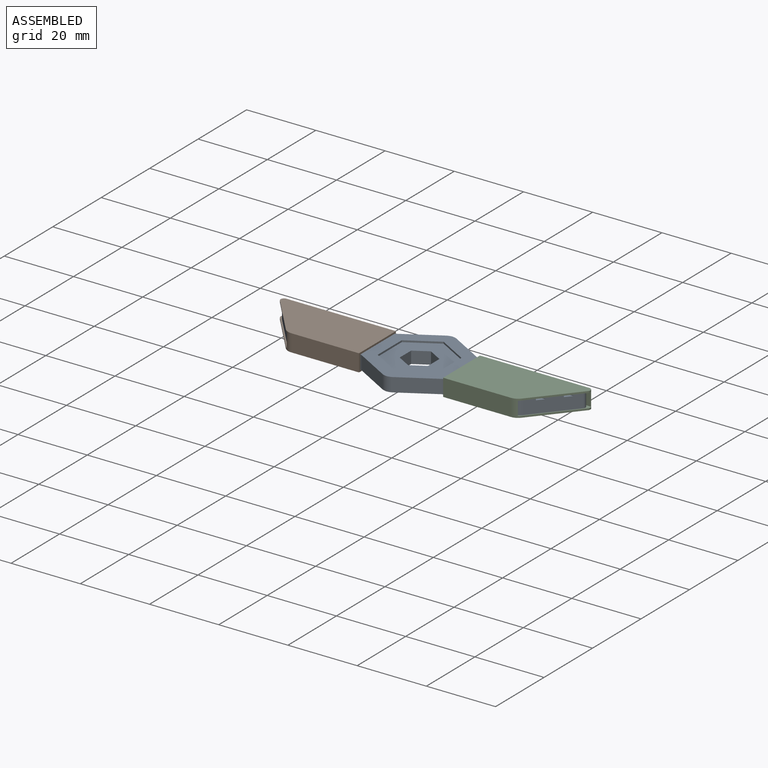
[diagram: assembled view]
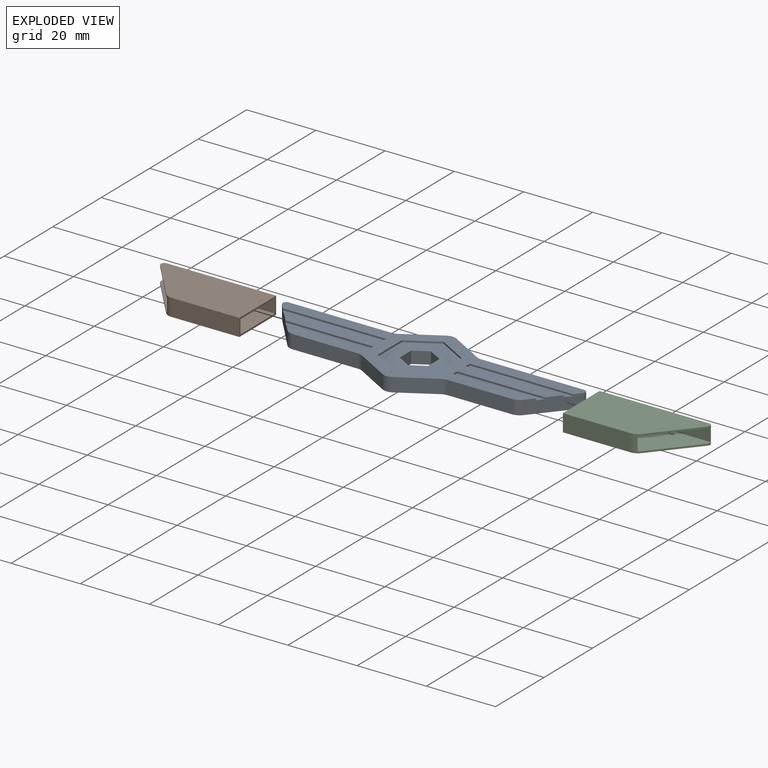
[diagram: exploded view]
GUIDED TOUR — MATED ASSEMBLY (Onshape document 57a345c0e4b0eec132510748, AutoMate assembly 57a345c0e4b0eec132510748_a3fb6fd7bc34ab5af173d9aa_e9c5cc17b2ee37ea8d773729_default)

This assembly has 3 components, labeled P0..P2 below (a component is one placed occurrence of a part; the same part can appear more than once), held together by 2 mates. A mate is a constraint between two components; its type names the relative motion it leaves free:
  SLIDER — leaves translation along the listed axis free.
Axis/direction vectors are unit vectors and 'through' points are millimeter coordinates, both in the assembly's world frame.

MATES
  1. SLIDER "Slider 1": P0 <-> P1, axis (1.000, 0.000, 0.000) through (-42.73, 7.00, 4.00) mm
  2. SLIDER "Slider 2": P2 <-> P0, axis (-1.000, 0.000, 0.000) through (22.69, -7.00, 0.00) mm

ASSEMBLY ORDER
  1. P2 — the base component [order verified]
  2. P0 [order verified]
  3. P1 [order verified]
(P0 verified with a relaxed clearance tolerance: the source model stores slight part interference there.)
Order-tag legend:
  [order verified] — this step's position reverses a verified removal order: the component was checked to insert without passing through the ones already placed.

Of the 3 components, 3 carry the full construction recipe — the FeatureScript program that regenerates the part's solid from scratch; the rest are supplied as boundary geometry only.
Each toured component is shown spotlighted twice — in the assembled view, then in the exploded view, where a leader line traces a displaced component back to its assembled socket (saturated green if recipe-attached, orange if geometry-only; every other component desaturated gray) — followed by its recipe or geometry summary and the mates that hold it.
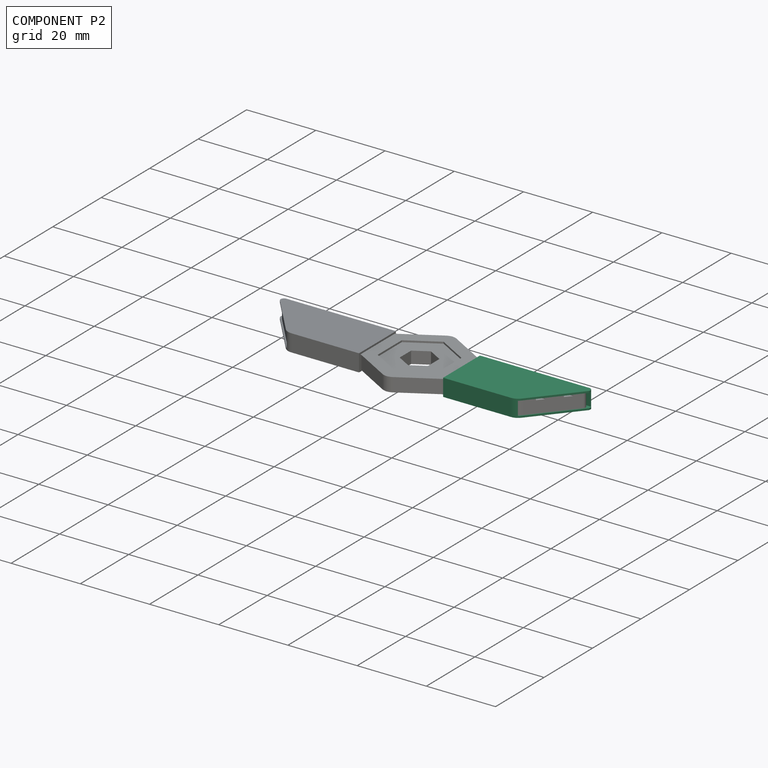
[diagram: component P2 — assembled]
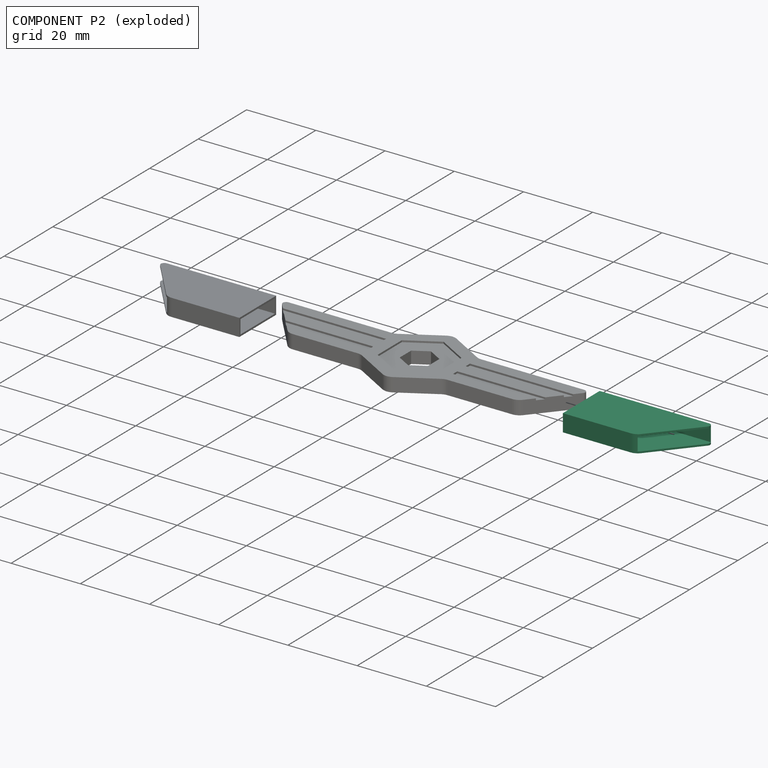
[diagram: component P2 — exploded]
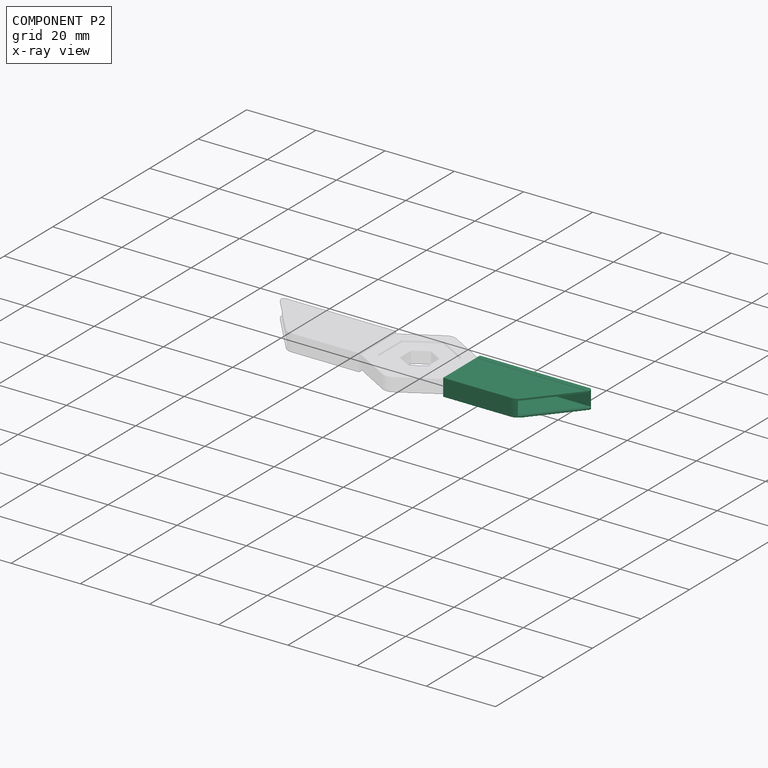
[diagram: component P2 — x-ray view]
COMPONENT P2 — same part as P1 (CADFS 00210956); its construction recipe is shown at P1.
Held by: SLIDER mate "Slider 2" to P0.
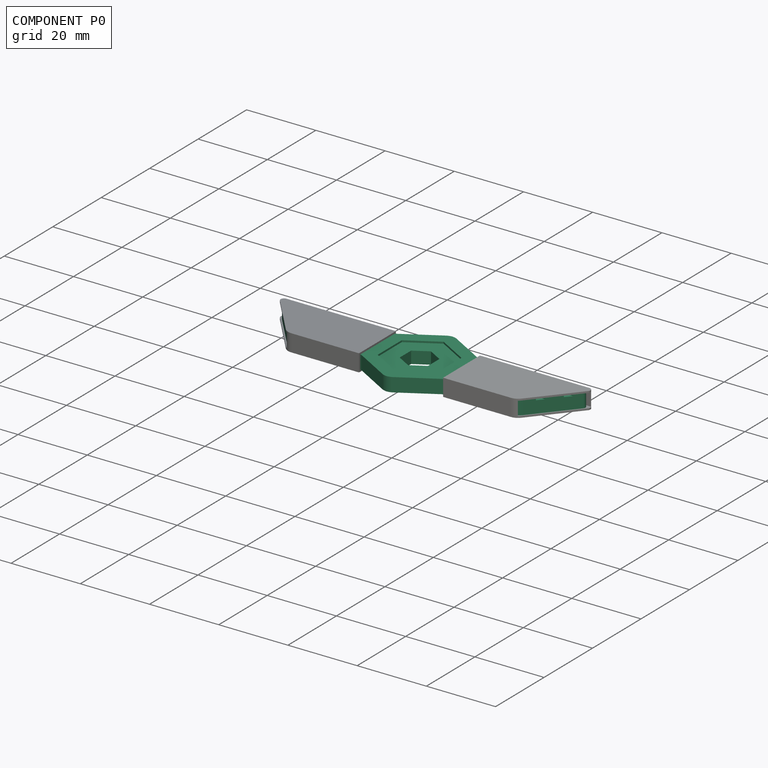
[diagram: component P0 — assembled]
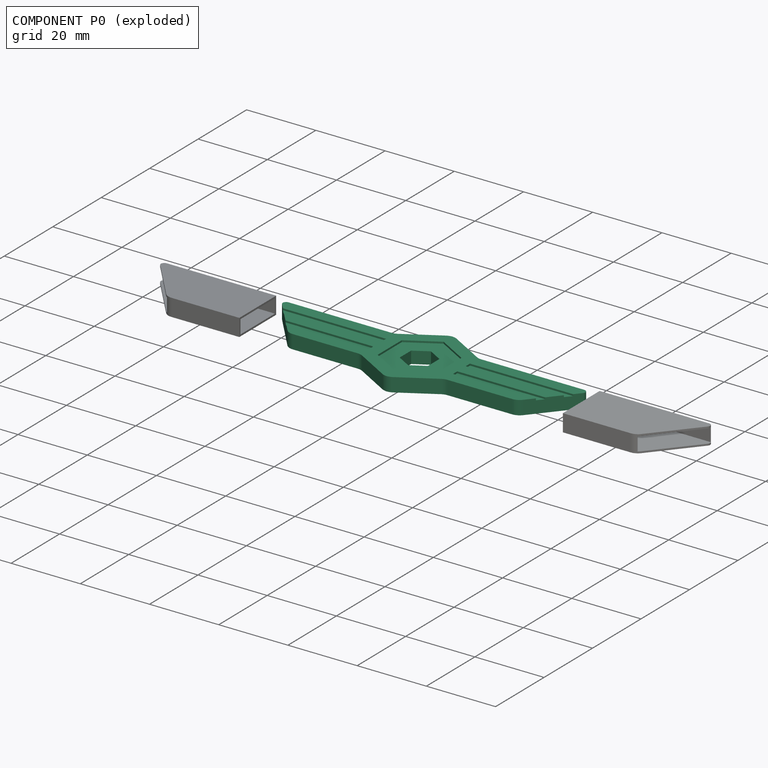
[diagram: component P0 — exploded]
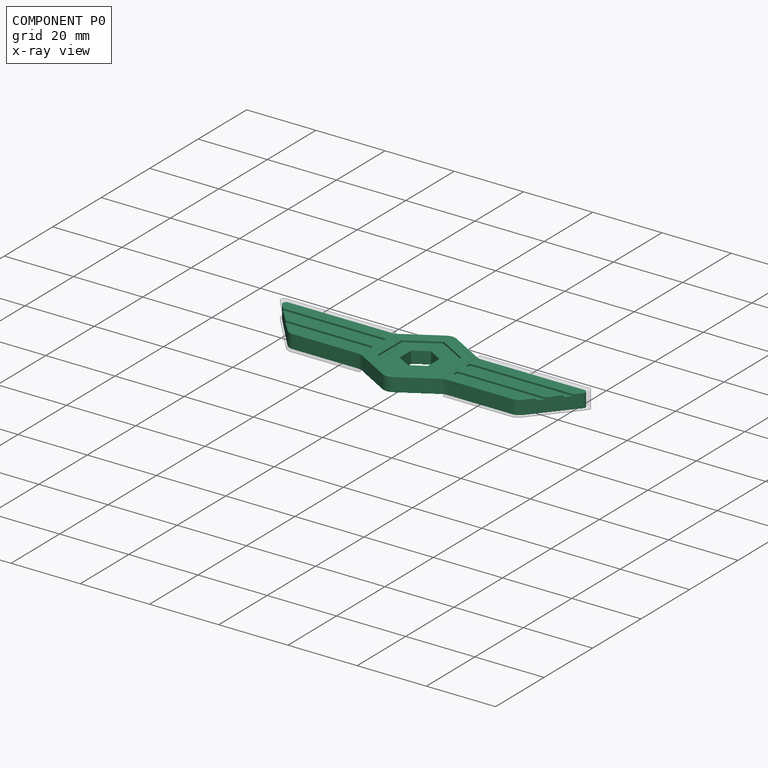
[diagram: component P0 — x-ray view]
COMPONENT P0 — recipe-attached (CADFS 00210955, mesh-verified: the recipe's output STEP matches this component's geometry to below the mesh-comparison resolution (tessellation chordal tolerance ~0.137 mm)).
Held by: SLIDER mate "Slider 1" to P1; SLIDER mate "Slider 2" to P2.
Construction recipe (FeatureScript — the CAD program that rebuilds this solid; sketch coordinates are in the units given by the * unit suffixes, e.g. mm):

FeatureScript 1511;
import(path : "onshape/std/geometry.fs", version : "1511.0");
import(path : "onshape/std/common.fs", version : "1511.0");
const mm = millimeter;
const VERTEX = EntityType.VERTEX;
const EDGE = EntityType.EDGE;
const FACE = EntityType.FACE;
const BODY = EntityType.BODY;
function v(x, y){return vector(x, y);}
function OD(order){return orderDisambiguation(order);}
function OSD(set){return originalSetDisambiguation(set);}
function TD(topology){return topologyDisambiguation(topology);}
function TDD(query){return trueDependencyDisambiguation(query);}
function sQuery(a, b, c) {return sketchEntityQuery(a, b, c);}

annotation { "Feature Type Name" : "Feature", "Feature Type Description" : "" }
export const myFeature = defineFeature(function(context is Context, id is Id, definition is map)
    precondition{}
    {
        {
            var Q0;
            Q0=qCreatedBy(makeId("Top.planeOp"),FACE);
            var sketch = newSketch(context, id + "F0", { "sketchPlane" : qUnion([Q0])});
            skCircle(sketch, "E0.cCircle", {"center": v(0, 0) * mm, "radius": 4.1 * mm, "construction": true});
            skLineSegment(sketch, "E0.0", {"start": v(4.1, -2.36) * mm, "end": v(0, -4.72) * mm});
            skLineSegment(sketch, "E0.1", {"start": v(0, -4.72) * mm, "end": v(-4.1, -2.36) * mm});
            skLineSegment(sketch, "E0.2", {"start": v(-4.1, -2.36) * mm, "end": v(-4.1, 2.36) * mm});
            skLineSegment(sketch, "E0.3", {"start": v(-4.1, 2.36) * mm, "end": v(0, 4.72) * mm});
            skLineSegment(sketch, "E0.4", {"start": v(0, 4.72) * mm, "end": v(4.1, 2.36) * mm});
            skLineSegment(sketch, "E0.5", {"start": v(4.1, 2.36) * mm, "end": v(4.09, -2.36) * mm});
            skPoint(sketch, "E0.0.midPoint", {"position": v(2.04, -3.54) * mm});
            skLineSegment(sketch, "E1.bottom", {"start": v(-30.14, 7) * mm, "end": v(-12.12, 7) * mm});
            skLineSegment(sketch, "E1.top", {"start": v(-33.12, -7) * mm, "end": v(-12.12, -7) * mm});
            skLineSegment(sketch, "E2.MirrorCS", {"start": v(30.14, 7) * mm, "end": v(12.12, 7) * mm});
            skPoint(sketch, "E3.MirrorCS.end.orphan", {"position": v(7.14, -7) * mm});
            skPoint(sketch, "E3.MirrorCS.start.orphan", {"position": v(7.14, 7) * mm});
            skPoint(sketch, "E4.visualSharp", {"position": v(-7.14, -7) * mm});
            skPoint(sketch, "E5.visualSharp", {"position": v(-7.14, 7) * mm});
            skLineSegment(sketch, "E6", {"start": v(-33.12, -7) * mm, "end": v(-44.87, 7) * mm});
            skLineSegment(sketch, "E7", {"start": v(-44.87, 7) * mm, "end": v(-30.14, 7) * mm});
            skLineSegment(sketch, "E8.MirrorCS", {"start": v(33.12, -7) * mm, "end": v(44.87, 7) * mm});
            skLineSegment(sketch, "E9.MirrorCS", {"start": v(44.87, 7) * mm, "end": v(30.14, 7) * mm});
            skCircle(sketch, "E10.cCircle", {"center": v(0, 0) * mm, "radius": 12.12 * mm, "construction": true});
            skLineSegment(sketch, "E10.0", {"start": v(12.12, -7) * mm, "end": v(0, -14) * mm});
            skLineSegment(sketch, "E10.1", {"start": v(0, -14) * mm, "end": v(-12.12, -7) * mm});
            skLineSegment(sketch, "E10.3", {"start": v(-12.12, 7) * mm, "end": v(0, 14) * mm});
            skLineSegment(sketch, "E10.4", {"start": v(0, 14) * mm, "end": v(12.12, 7) * mm});
            skPoint(sketch, "E10.0.midPoint", {"position": v(6.06, -10.5) * mm});
            skLineSegment(sketch, "E11.trimOffspring", {"start": v(12.12, -7) * mm, "end": v(33.12, -7) * mm});
            skSolve(sketch);
        }
        {
            var Q0;
            Q0=makeQuery(id+"F0.imprint","IMPRINT",FACE,{"disambiguationData":[TD([[makeQuery(id+"F0.imprint","IMPRINT",EDGE,{"derivedFrom":sQuery(id+"F0.wireOp",EDGE,"E0.0")}),1.0]])]});
            extrude(context, id + "F1", {"entities" : qUnion([Q0]), "depth" : 4 * mm});
        }
        {
            var Q0;
            Q0=makeQuery(id+"F1.opExtrude","SWEPT_EDGE",EDGE,{"disambiguationData":[OSD([sQuery(id+"F0.wireOp",EDGE,"E6"),sQuery(id+"F0.wireOp",EDGE,"E7")])]});
            var Q1;
            Q1=makeQuery(id+"F1.opExtrude","SWEPT_EDGE",EDGE,{"disambiguationData":[OSD([sQuery(id+"F0.wireOp",EDGE,"E8.MirrorCS"),sQuery(id+"F0.wireOp",EDGE,"E9.MirrorCS")])]});
            fillet(context, id + "F2", {"entities" : qUnion([Q0, Q1]), "radius" : 1 * mm, "tangentPropagation" : true, "allowEdgeOverflow" : false});
        }
        {
            var Q0;
            Q0=makeQuery(id+"F1.opExtrude","SWEPT_EDGE",EDGE,{"disambiguationData":[OSD([sQuery(id+"F0.wireOp",EDGE,"E8.MirrorCS"),sQuery(id+"F0.wireOp",EDGE,"0MMS0jSz-Kxbr-ZvAx-s6WA-RVu7Zw2v6SDE")])]});
            var Q1;
            Q1=makeQuery(id+"F1.opExtrude","SWEPT_EDGE",EDGE,{"disambiguationData":[OSD([sQuery(id+"F0.wireOp",EDGE,"E1.top"),sQuery(id+"F0.wireOp",EDGE,"E6")])]});
            var Q2;
            Q2=makeQuery(id+"F1.opExtrude","SWEPT_EDGE",EDGE,{"disambiguationData":[OSD([sQuery(id+"F0.wireOp",EDGE,"E1.top"),sQuery(id+"F0.wireOp",EDGE,"E10.1")])]});
            var Q3;
            Q3=makeQuery(id+"F1.opExtrude","SWEPT_EDGE",EDGE,{"disambiguationData":[OSD([sQuery(id+"F0.wireOp",EDGE,"E10.0"),sQuery(id+"F0.wireOp",EDGE,"E11.trimOffspring")])]});
            var Q4;
            Q4=makeQuery(id+"F1.opExtrude","SWEPT_EDGE",EDGE,{"disambiguationData":[OSD([sQuery(id+"F0.wireOp",EDGE,"E2.MirrorCS"),sQuery(id+"F0.wireOp",EDGE,"E10.4")])]});
            var Q5;
            Q5=makeQuery(id+"F1.opExtrude","SWEPT_EDGE",EDGE,{"disambiguationData":[OSD([sQuery(id+"F0.wireOp",EDGE,"E1.bottom"),sQuery(id+"F0.wireOp",EDGE,"E10.3")])]});
            var Q6;
            Q6=makeQuery(id+"F1.opExtrude","SWEPT_EDGE",EDGE,{"disambiguationData":[OSD([sQuery(id+"F0.wireOp",EDGE,"E10.0"),sQuery(id+"F0.wireOp",EDGE,"E10.1")])]});
            var Q7;
            Q7=makeQuery(id+"F1.opExtrude","SWEPT_EDGE",EDGE,{"disambiguationData":[OSD([sQuery(id+"F0.wireOp",EDGE,"E10.3"),sQuery(id+"F0.wireOp",EDGE,"E10.4")])]});
            fillet(context, id + "F3", {"entities" : qUnion([Q0, Q1, Q2, Q3, Q4, Q5, Q6, Q7]), "radius" : 3 * mm, "tangentPropagation" : true, "allowEdgeOverflow" : false});
        }
        {
            var Q0;
            Q0=makeQuery(id+"F1.opExtrude","CAP_FACE",FACE,{"disambiguationData":[OSD([sQuery(id+"F0.wireOp",EDGE,"E0.0"),sQuery(id+"F0.wireOp",EDGE,"E0.1"),sQuery(id+"F0.wireOp",EDGE,"E0.2"),sQuery(id+"F0.wireOp",EDGE,"E0.3"),sQuery(id+"F0.wireOp",EDGE,"E0.4"),sQuery(id+"F0.wireOp",EDGE,"E0.5"),sQuery(id+"F0.wireOp",EDGE,"E1.bottom"),sQuery(id+"F0.wireOp",EDGE,"E1.top"),sQuery(id+"F0.wireOp",EDGE,"E2.MirrorCS"),sQuery(id+"F0.wireOp",EDGE,"E6"),sQuery(id+"F0.wireOp",EDGE,"E7"),sQuery(id+"F0.wireOp",EDGE,"E8.MirrorCS"),sQuery(id+"F0.wireOp",EDGE,"E9.MirrorCS"),sQuery(id+"F0.wireOp",EDGE,"E10.0"),sQuery(id+"F0.wireOp",EDGE,"E10.1"),sQuery(id+"F0.wireOp",EDGE,"E10.3"),sQuery(id+"F0.wireOp",EDGE,"E10.4"),sQuery(id+"F0.wireOp",EDGE,"E11.trimOffspring")])],"isStart":false});
            var sketch = newSketch(context, id + "F4", { "sketchPlane" : qUnion([Q0])});
            skCircle(sketch, "E12.cCircle", {"center": v(0, 0) * mm, "radius": 4.09 * mm, "construction": true});
            skLineSegment(sketch, "E12.0", {"start": v(4.1, -2.36) * mm, "end": v(0, -4.72) * mm});
            skLineSegment(sketch, "E12.1", {"start": v(0, -4.72) * mm, "end": v(-4.1, -2.36) * mm});
            skLineSegment(sketch, "E12.2", {"start": v(-4.09, -2.36) * mm, "end": v(-4.09, 2.36) * mm});
            skLineSegment(sketch, "E12.3", {"start": v(-4.1, 2.36) * mm, "end": v(0, 4.72) * mm});
            skLineSegment(sketch, "E12.4", {"start": v(0, 4.72) * mm, "end": v(4.1, 2.36) * mm});
            skLineSegment(sketch, "E12.5", {"start": v(4.1, 2.36) * mm, "end": v(4.1, -2.36) * mm});
            skPoint(sketch, "E12.0.midPoint", {"position": v(2.05, -3.54) * mm});
            skCircle(sketch, "E13.cCircle", {"center": v(0, 0) * mm, "radius": 8.62 * mm, "construction": true});
            skLineSegment(sketch, "E13.0", {"start": v(8.62, -4.98) * mm, "end": v(0, -9.96) * mm});
            skLineSegment(sketch, "E13.1", {"start": v(0, -9.96) * mm, "end": v(-8.62, -4.98) * mm});
            skLineSegment(sketch, "E13.2", {"start": v(-8.62, -4.98) * mm, "end": v(-8.62, 4.98) * mm});
            skLineSegment(sketch, "E13.3", {"start": v(-8.62, 4.98) * mm, "end": v(0, 9.96) * mm});
            skLineSegment(sketch, "E13.4", {"start": v(0, 9.96) * mm, "end": v(8.62, 4.98) * mm});
            skLineSegment(sketch, "E13.5", {"start": v(8.62, 4.98) * mm, "end": v(8.62, -4.98) * mm});
            skPoint(sketch, "E13.0.midPoint", {"position": v(4.31, -7.47) * mm});
            skLineSegment(sketch, "E14", {"start": v(-41.93, 3.5) * mm, "end": v(-12.12, 3.5) * mm});
            skLineSegment(sketch, "E15", {"start": v(-12.12, 3.5) * mm, "end": v(-12.12, 1.75) * mm});
            skLineSegment(sketch, "E16", {"start": v(-12.12, 1.75) * mm, "end": v(-40.47, 1.75) * mm});
            skLineSegment(sketch, "E17", {"start": v(-41.93, 3.5) * mm, "end": v(-40.47, 1.75) * mm});
            skLineSegment(sketch, "E18", {"start": v(-37.53, -1.75) * mm, "end": v(-12.12, -1.75) * mm});
            skLineSegment(sketch, "E19", {"start": v(-12.12, -1.75) * mm, "end": v(-12.12, -3.5) * mm});
            skLineSegment(sketch, "E20", {"start": v(-12.12, -3.5) * mm, "end": v(-36.06, -3.5) * mm});
            skLineSegment(sketch, "E21", {"start": v(-36.06, -3.5) * mm, "end": v(-37.53, -1.75) * mm});
            skLineSegment(sketch, "E22.MirrorCS", {"start": v(12.12, 1.75) * mm, "end": v(40.47, 1.75) * mm});
            skLineSegment(sketch, "E23.MirrorCS", {"start": v(12.12, 3.5) * mm, "end": v(12.12, 1.75) * mm});
            skLineSegment(sketch, "E24.MirrorCS", {"start": v(41.93, 3.5) * mm, "end": v(12.12, 3.5) * mm});
            skLineSegment(sketch, "E25.MirrorCS", {"start": v(41.93, 3.5) * mm, "end": v(40.47, 1.75) * mm});
            skLineSegment(sketch, "E26.MirrorCS", {"start": v(37.53, -1.75) * mm, "end": v(12.12, -1.75) * mm});
            skLineSegment(sketch, "E27.MirrorCS", {"start": v(12.12, -1.75) * mm, "end": v(12.12, -3.5) * mm});
            skLineSegment(sketch, "E28.MirrorCS", {"start": v(12.12, -3.5) * mm, "end": v(36.06, -3.5) * mm});
            skLineSegment(sketch, "E29.MirrorCS", {"start": v(36.06, -3.5) * mm, "end": v(37.53, -1.75) * mm});
            skSolve(sketch);
        }
        {
            var Q0;
            Q0 = qSketchRegion(id + "F4", true);
            extrude(context, id + "F5", {"entities" : qUnion([Q0]), "operationType" : NewBodyOperationType.REMOVE, "oppositeDirection" : true, "depth" : .5 * mm});
        }
        {
            var Q0;
            Q0=qCreatedBy(makeId("Top.planeOp"),FACE);
            cPlane(context, id + "F6", {"entities" : qUnion([Q0]), "cplaneType" : CPlaneType.OFFSET, "offset" : 50 * mm, "width" : 150 * mm, "height" : 150 * mm});
        }
    });
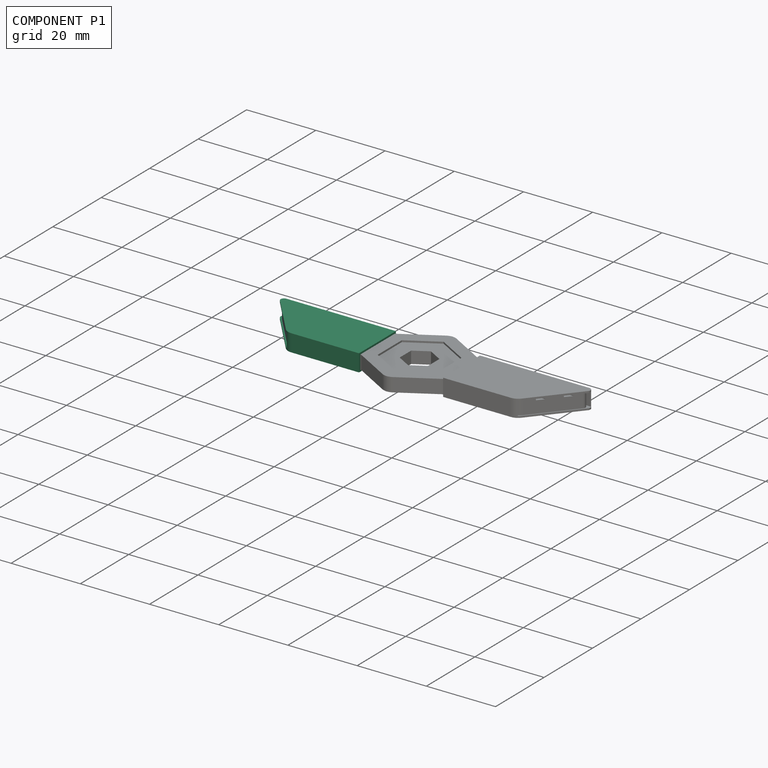
[diagram: component P1 — assembled]
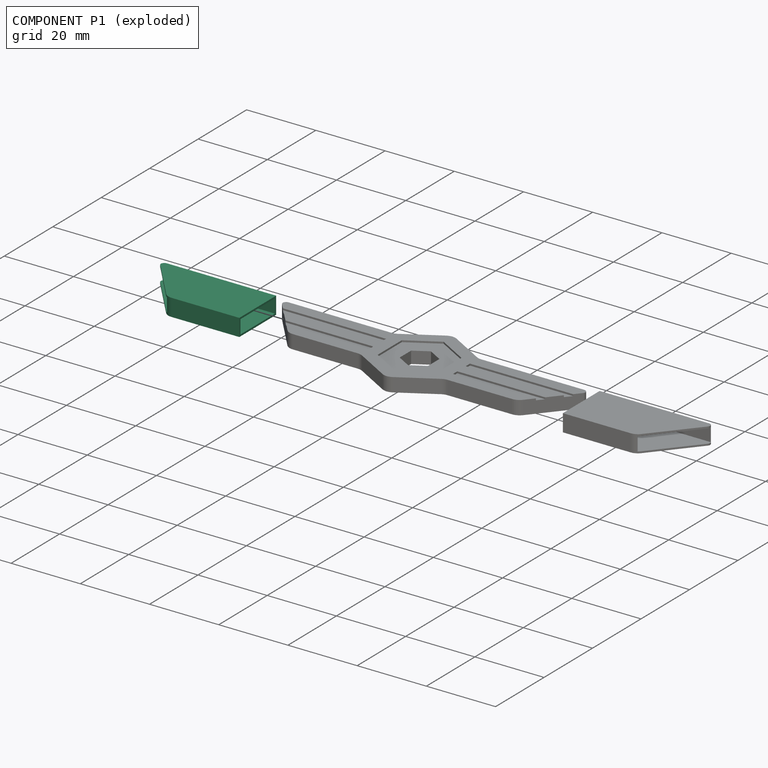
[diagram: component P1 — exploded]
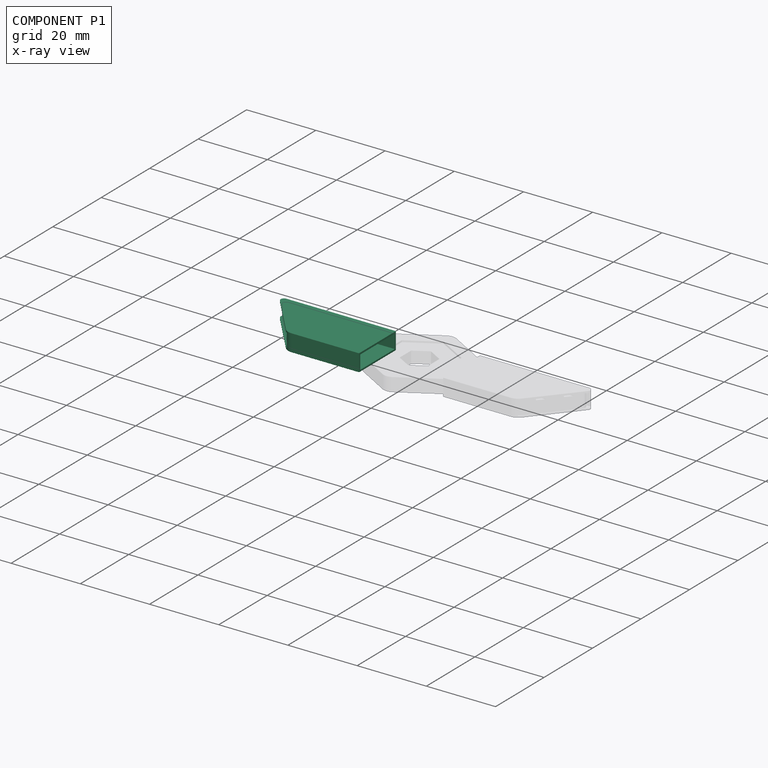
[diagram: component P1 — x-ray view]
COMPONENT P1 — recipe-attached (CADFS 00210956, mesh-verified: the recipe's output STEP matches this component's geometry to below the mesh-comparison resolution (tessellation chordal tolerance ~0.0545 mm)).
Held by: SLIDER mate "Slider 1" to P0.
Construction recipe (FeatureScript — the CAD program that rebuilds this solid; sketch coordinates are in the units given by the * unit suffixes, e.g. mm):

FeatureScript 1511;
import(path : "onshape/std/geometry.fs", version : "1511.0");
import(path : "onshape/std/common.fs", version : "1511.0");
const mm = millimeter;
const VERTEX = EntityType.VERTEX;
const EDGE = EntityType.EDGE;
const FACE = EntityType.FACE;
const BODY = EntityType.BODY;
function v(x, y){return vector(x, y);}
function OD(order){return orderDisambiguation(order);}
function OSD(set){return originalSetDisambiguation(set);}
function TD(topology){return topologyDisambiguation(topology);}
function TDD(query){return trueDependencyDisambiguation(query);}
function sQuery(a, b, c) {return sketchEntityQuery(a, b, c);}

annotation { "Feature Type Name" : "Feature", "Feature Type Description" : "" }
export const myFeature = defineFeature(function(context is Context, id is Id, definition is map)
    precondition{}
    {
        {
            var Q0;
            Q0=qCreatedBy(makeId("Top.planeOp"),FACE);
            var sketch = newSketch(context, id + "F0", { "sketchPlane" : qUnion([Q0])});
            skLineSegment(sketch, "E0.bottom", {"start": v(7.1, -2) * mm, "end": v(-7.1, -2) * mm});
            skLineSegment(sketch, "E0.top", {"start": v(7.1, 2) * mm, "end": v(-7.1, 2) * mm});
            skLineSegment(sketch, "E0.left", {"start": v(7.1, -2) * mm, "end": v(7.1, 2) * mm});
            skLineSegment(sketch, "E0.right", {"start": v(-7.1, -2) * mm, "end": v(-7.1, 2) * mm});
            skPoint(sketch, "E0.middle", {"position": v(0, 0) * mm});
            skLineSegment(sketch, "E1.bottom", {"start": v(7.6, -2.5) * mm, "end": v(-7.6, -2.5) * mm});
            skLineSegment(sketch, "E1.top", {"start": v(7.6, 2.5) * mm, "end": v(-7.6, 2.5) * mm});
            skLineSegment(sketch, "E1.left", {"start": v(7.6, -2.5) * mm, "end": v(7.6, 2.5) * mm});
            skLineSegment(sketch, "E1.right", {"start": v(-7.6, -2.5) * mm, "end": v(-7.6, 2.5) * mm});
            skSolve(sketch);
        }
        {
            var Q0;
            Q0=qSketchRegion(id+"F0",true);
            extrude(context, id + "F1", {"entities" : qUnion([Q0]), "depth" : 21 * mm});
        }
        {
            var Q0;
            Q0=makeQuery(id+"F1.opExtrude","CAP_EDGE",EDGE,{"disambiguationData":[OSD([sQuery(id+"F0.wireOp",EDGE,"E1.right")])],"isStart":false});
            var Q1;
            Q1=makeQuery(id+"F1.opExtrude","CAP_FACE",FACE,{"disambiguationData":[OSD([sQuery(id+"F0.wireOp",EDGE,"E0.bottom"),sQuery(id+"F0.wireOp",EDGE,"E0.top"),sQuery(id+"F0.wireOp",EDGE,"E0.left"),sQuery(id+"F0.wireOp",EDGE,"E0.right"),sQuery(id+"F0.wireOp",EDGE,"E1.bottom"),sQuery(id+"F0.wireOp",EDGE,"E1.top"),sQuery(id+"F0.wireOp",EDGE,"E1.left"),sQuery(id+"F0.wireOp",EDGE,"E1.right")])],"isStart":false});
            cPlane(context, id + "F2", {"entities" : qUnion([Q0, Q1]), "cplaneType" : CPlaneType.LINE_ANGLE, "offset" : 25 * mm, "angle" : 140 * degree, "width" : 150 * mm, "height" : 150 * mm});
        }
        {
            var Q0;
            Q0=makeQuery(id+"F1.opExtrude","CAP_FACE",FACE,{"disambiguationData":[OSD([sQuery(id+"F0.wireOp",EDGE,"E0.bottom"),sQuery(id+"F0.wireOp",EDGE,"E0.top"),sQuery(id+"F0.wireOp",EDGE,"E0.left"),sQuery(id+"F0.wireOp",EDGE,"E0.right"),sQuery(id+"F0.wireOp",EDGE,"E1.bottom"),sQuery(id+"F0.wireOp",EDGE,"E1.top"),sQuery(id+"F0.wireOp",EDGE,"E1.left"),sQuery(id+"F0.wireOp",EDGE,"E1.right")])],"isStart":false});
            var sketch = newSketch(context, id + "F3", { "sketchPlane" : qUnion([Q0])});
            skLineSegment(sketch, "E2", {"start": v(-7.1, 2) * mm, "end": v(-7.1, -2) * mm});
            skLineSegment(sketch, "E3", {"start": v(-7.1, -2) * mm, "end": v(7.1, -2) * mm});
            skLineSegment(sketch, "E4", {"start": v(7.1, -2) * mm, "end": v(7.1, 2) * mm});
            skLineSegment(sketch, "E5", {"start": v(7.1, 2) * mm, "end": v(-7.1, 2) * mm});
            skLineSegment(sketch, "E6", {"start": v(-7.6, 2.5) * mm, "end": v(-7.6, -2.5) * mm});
            skLineSegment(sketch, "E7", {"start": v(-7.6, -2.5) * mm, "end": v(7.6, -2.5) * mm});
            skLineSegment(sketch, "E8", {"start": v(7.6, -2.5) * mm, "end": v(7.6, 2.5) * mm});
            skLineSegment(sketch, "E9", {"start": v(7.6, 2.5) * mm, "end": v(-7.6, 2.5) * mm});
            skSolve(sketch);
        }
        {
            var Q0;
            Q0=qSketchRegion(id+"F3",true);
            var Q1;
            Q1=qCreatedBy(id+"F2.planeOp",FACE);
            extrude(context, id + "F4", {"entities" : qUnion([Q0]), "operationType" : NewBodyOperationType.ADD, "endBound" : BoundingType.UP_TO_SURFACE, "endBoundEntityFace" : qUnion([Q1]), "depth" : 25 * mm});
        }
        {
            var Q0;
            Q0=makeQuery(id+"F4.opExtrude","CAP_EDGE",EDGE,{"disambiguationData":[OSD([sQuery(id+"F3.wireOp",EDGE,"E8")])],"isStart":false});
            fillet(context, id + "F5", {"entities" : qUnion([Q0]), "radius" : 1 * mm, "tangentPropagation" : true, "allowEdgeOverflow" : false});
        }
        {
            var Q0;
            Q0=makeQuery(id+"F4.boolean.opBoolean","MERGE",EDGE,{"derivedFrom":[makeQuery(id+"F1.opExtrude","CAP_EDGE",EDGE,{"disambiguationData":[OSD([sQuery(id+"F0.wireOp",EDGE,"E1.right")])],"isStart":false}),makeQuery(id+"F4.opExtrude","CAP_EDGE",EDGE,{"disambiguationData":[OSD([sQuery(id+"F3.wireOp",EDGE,"E6")])],"isStart":false})]});
            fillet(context, id + "F6", {"entities" : qUnion([Q0]), "radius" : 3 * mm, "tangentPropagation" : true, "allowEdgeOverflow" : false});
        }
    });
PROVENANCE & LICENSES
Assembly (occurrences, transforms, mates, per-part STEP geometry): AutoMate dataset, Zenodo record 7776208, CC0.
Construction recipes: CADFS (HuggingFace VladPyatov/CADFS, CC-BY-4.0, layered over the ABC dataset), FeatureScript reconstruction programs keyed by ABC model id.
Join: ABC meta listings map ABC model id -> Onshape documentId; within a shared document, parts are matched by geometric signature (bounding-box dims + volume at 0.1% relative tolerance, exact B-rep face/solid counts).
Verification: 3 of this assembly's 3 components carry a recipe attachment, and every attachment is mesh-verified: the CADFS STEP and the AutoMate member STEP were compared as meshes in their shared local frame (symmetric sampled-point-to-mesh distance); worst across the 3 attachments: below the mesh-comparison resolution (tessellation chordal tolerance ~0.137 mm) on a 92 mm part.
Renders: orthographic iso camera (az 35 / el 25); the floor grid conveys scale (grid pitch printed in each image; no ruler). In the exploded view each component is displaced by its stored offset vector: the offsets alone carry the explosion direction (mate normal/axis signs are not orientation cues and do not encode it), and separation distances are assigned per mate-chain, not proportionally to assembly-order depth.
